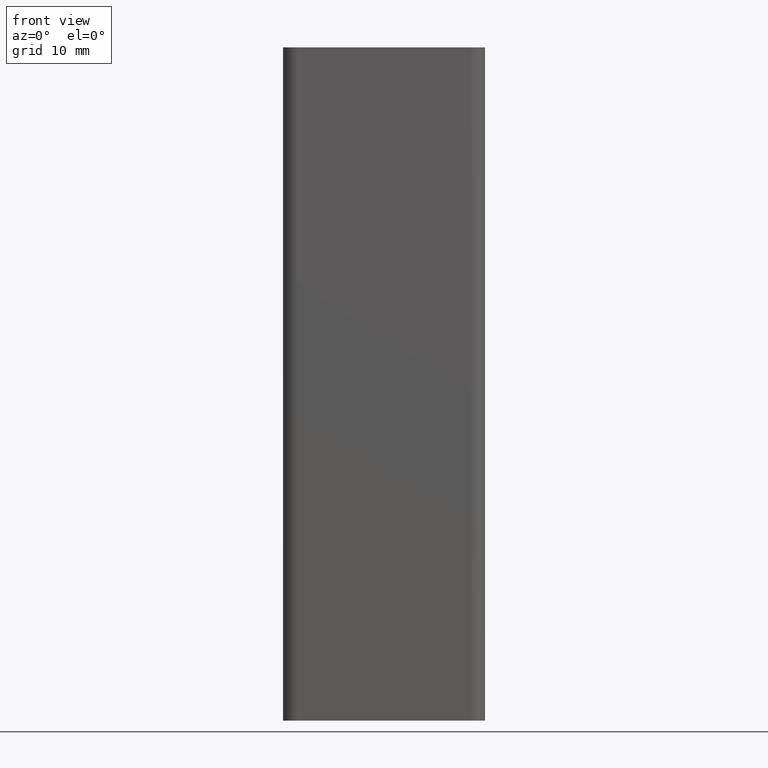
[diagram: clean part render]
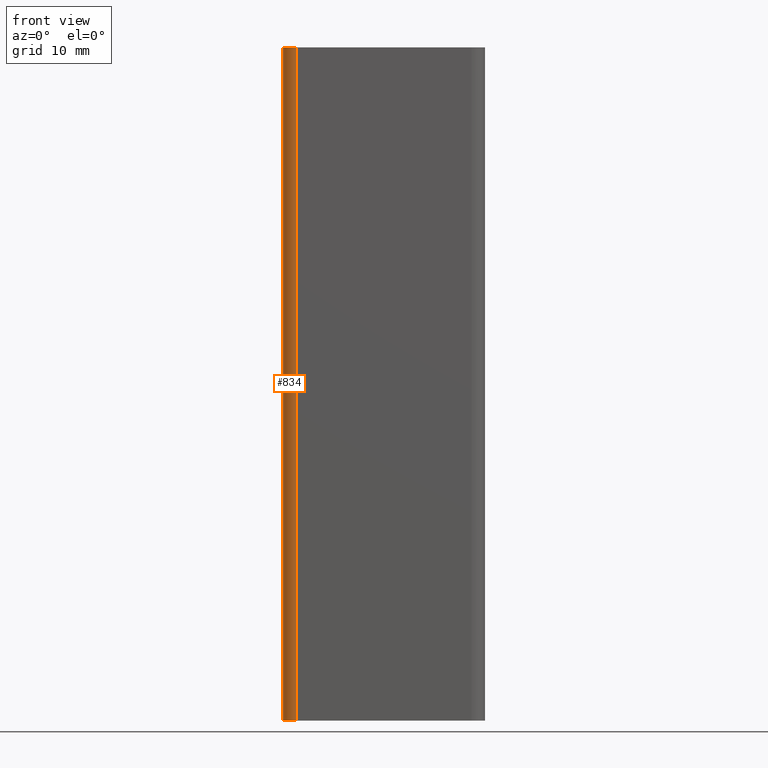
[diagram: same view with one face highlighted and labeled with its STEP entity id]
A machine part, front view. The second image highlights one B-rep face of the part: STEP entity #834.
In plain terms, the highlighted cylindrical surface (edge-blend (fillet) strip) has radius 2 mm, axis along (0, 0, 1).
Its self-contained STEP definition (entity closure, byte-faithful):
#59=CIRCLE('',#915,2.00000000847673);
#60=CIRCLE('',#916,2.00000000847673);
#81=CYLINDRICAL_SURFACE('',#914,2.00000000847673);
#120=FACE_OUTER_BOUND('',#162,.T.);
#162=EDGE_LOOP('',(#683,#684,#685,#686));
#249=LINE('',#1393,#329);
#251=LINE('',#1399,#331);
#329=VECTOR('',#1145,100.);
#331=VECTOR('',#1151,100.);
#409=VERTEX_POINT('',#1390);
#410=VERTEX_POINT('',#1392);
#411=VERTEX_POINT('',#1396);
#412=VERTEX_POINT('',#1398);
#525=EDGE_CURVE('',#410,#409,#249,.T.);
#527=EDGE_CURVE('',#409,#411,#59,.T.);
#528=EDGE_CURVE('',#412,#411,#251,.T.);
#529=EDGE_CURVE('',#410,#412,#60,.T.);
#683=ORIENTED_EDGE('',*,*,#527,.T.);
#684=ORIENTED_EDGE('',*,*,#528,.F.);
#685=ORIENTED_EDGE('',*,*,#529,.F.);
#686=ORIENTED_EDGE('',*,*,#525,.T.);
#834=ADVANCED_FACE('',(#120),#81,.T.);
#914=AXIS2_PLACEMENT_3D('',#1395,#1147,#1148);
#915=AXIS2_PLACEMENT_3D('',#1397,#1149,#1150);
#916=AXIS2_PLACEMENT_3D('',#1400,#1152,#1153);
#1145=DIRECTION('',(0.,0.,1.));
#1147=DIRECTION('center_axis',(0.,0.,1.));
#1148=DIRECTION('ref_axis',(1.,0.,0.));
#1149=DIRECTION('center_axis',(0.,0.,-1.));
#1150=DIRECTION('ref_axis',(1.,0.,0.));
#1151=DIRECTION('',(0.,0.,1.));
#1152=DIRECTION('center_axis',(0.,0.,-1.));
#1153=DIRECTION('ref_axis',(1.,0.,0.));
#1390=CARTESIAN_POINT('',(-12.9999999915233,-14.9999999955443,100.));
#1392=CARTESIAN_POINT('',(-12.9999999915233,-14.9999999955443,0.));
#1393=CARTESIAN_POINT('',(-12.9999999915233,-14.9999999955443,0.));
#1395=CARTESIAN_POINT('Origin',(-12.9999999915233,-12.9999999870676,0.));
#1396=CARTESIAN_POINT('',(-15.,-12.9999999870676,100.));
#1397=CARTESIAN_POINT('Origin',(-12.9999999915233,-12.9999999870676,100.));
#1398=CARTESIAN_POINT('',(-15.,-12.9999999870676,0.));
#1399=CARTESIAN_POINT('',(-15.,-12.9999999870676,0.));
#1400=CARTESIAN_POINT('Origin',(-12.9999999915233,-12.9999999870676,0.));